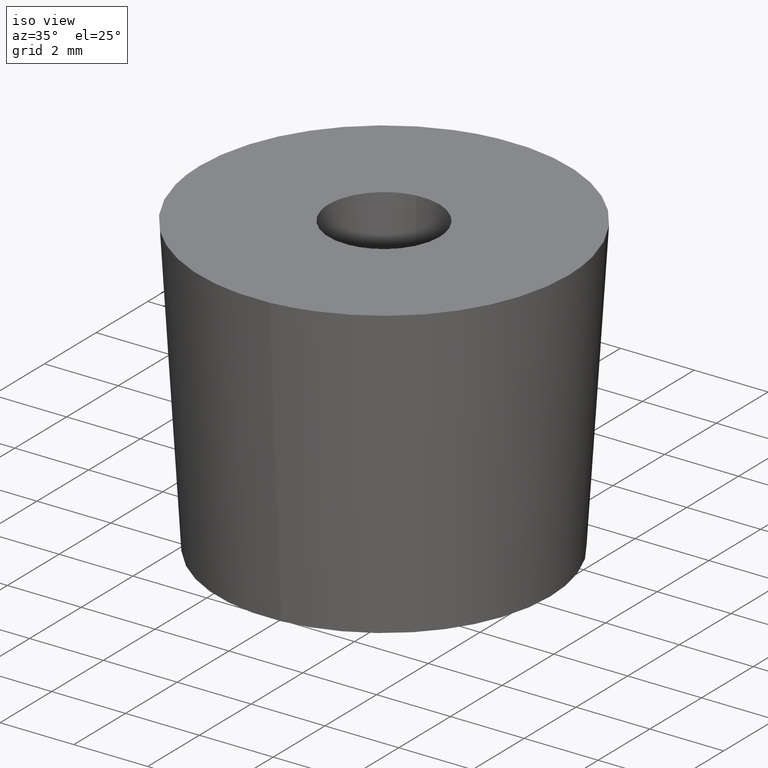
[diagram: clean part render]
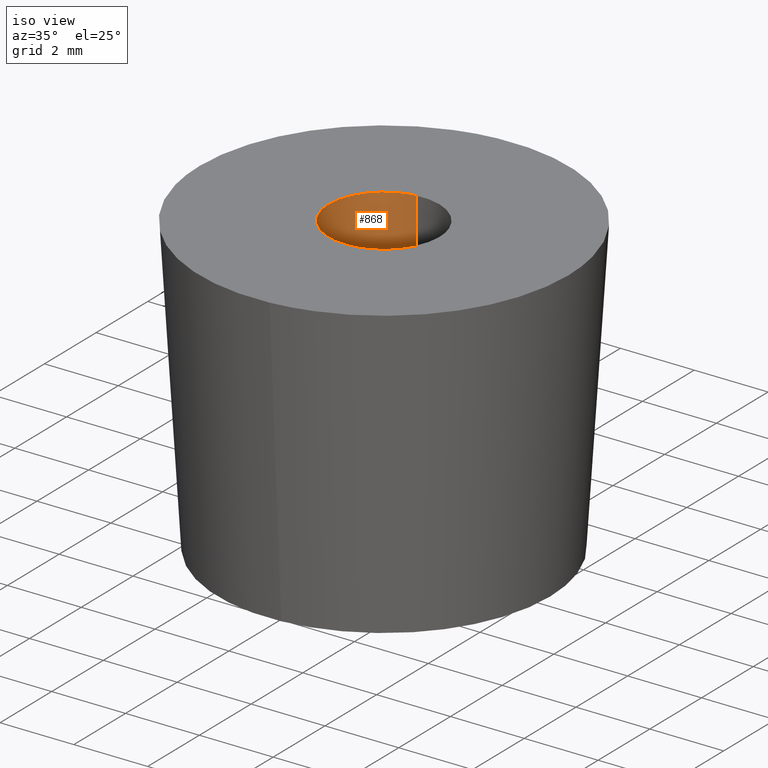
[diagram: same view with one face highlighted and labeled with its STEP entity id]
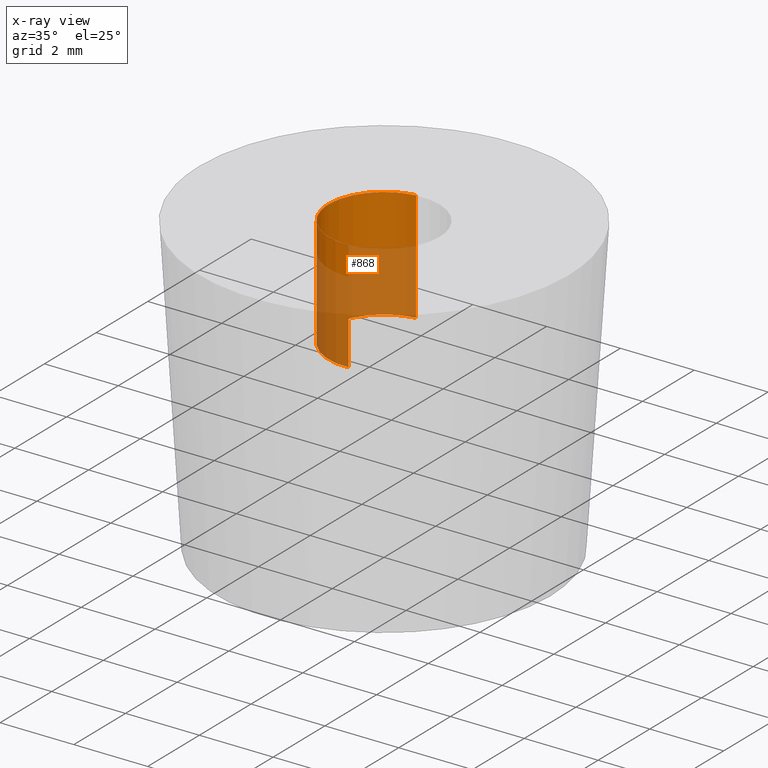
[diagram: x-ray of the same camera — body ghosted, the highlighted face saturated]
A machine part, iso view. The second image highlights one B-rep face of the part: STEP entity #868.
The next image is the same camera in x-ray: the body ghosted, the highlighted face saturated — about 56% of this face is hidden behind the body in this view.
In plain terms, the highlighted face is a freeform B-spline surface patch.
Its self-contained STEP definition (entity closure, byte-faithful):
#701=CARTESIAN_POINT('',(-0.177049095385547,1.489514557773100,8.000000000000014));
#702=VERTEX_POINT('',#701);
#720=CARTESIAN_POINT('',(-0.177049122601509,1.489514554538154,5.0));
#721=VERTEX_POINT('',#720);
#722=CARTESIAN_POINT('',(-0.177049095385547,1.489514557773100,8.000000000000014));
#723=CARTESIAN_POINT('',(-0.177049122601509,1.489514554538154,5.0));
#724=QUASI_UNIFORM_CURVE('',1,(#722,#723),.UNSPECIFIED.,.F.,.U.);
#725=EDGE_CURVE('',#702,#721,#724,.T.);
#744=CARTESIAN_POINT('',(0.091570935345200,-1.497202312246571,5.0));
#745=VERTEX_POINT('',#744);
#759=CARTESIAN_POINT('',(0.091570912522021,-1.497202313642439,7.999999999999989));
#760=VERTEX_POINT('',#759);
#761=CARTESIAN_POINT('',(0.091570912522021,-1.497202313642439,7.999999999999989));
#762=CARTESIAN_POINT('',(0.091570935345200,-1.497202312246571,5.0));
#763=QUASI_UNIFORM_CURVE('',1,(#761,#762),.UNSPECIFIED.,.F.,.U.);
#764=EDGE_CURVE('',#760,#745,#763,.T.);
#782=CARTESIAN_POINT('',(0.112202681040130,-1.495940420623945,8.074999999999998));
#783=CARTESIAN_POINT('',(0.101917265286339,-1.496569503600784,8.074999999999998));
#784=CARTESIAN_POINT('',(-1.405629388330515,-1.588775006935085,8.075000000000001));
#785=CARTESIAN_POINT('',(-1.497202197632800,-0.091572809302285,8.074999999999999));
#786=CARTESIAN_POINT('',(-1.583679295098791,1.322315236259252,8.075000000000001));
#787=CARTESIAN_POINT('',(-0.166519347114734,1.490766177972826,8.075000000000001));
#788=CARTESIAN_POINT('',(-0.156043946740954,1.492011338097695,8.074999999999999));
#789=CARTESIAN_POINT('',(0.112202681040130,-1.495940420623945,4.923124999999998));
#790=CARTESIAN_POINT('',(0.101917265286339,-1.496569503600784,4.923124999999998));
#791=CARTESIAN_POINT('',(-1.405629388330515,-1.588775006935085,4.923124999999998));
#792=CARTESIAN_POINT('',(-1.497202197632800,-0.091572809302285,4.923124999999999));
#793=CARTESIAN_POINT('',(-1.583679295098791,1.322315236259252,4.923124999999998));
#794=CARTESIAN_POINT('',(-0.166519347114734,1.490766177972826,4.923125000000000));
#795=CARTESIAN_POINT('',(-0.156043946740954,1.492011338097695,4.923125000000000));
#803=(BOUNDED_SURFACE()B_SPLINE_SURFACE(2,1,((#782,#789),(#783,#790),(#784,#791),(#785,#792),(#786,#793),(#787,#794),(#788,#795)),.UNSPECIFIED.,.F.,.F.,.U.)B_SPLINE_SURFACE_WITH_KNOTS((3,1,2,1,3),(2,2),(0.0,0.024353559358504,2.509634933597074,4.895505052866100,4.919863414297432),(0.0,3.151875000000001),.UNSPECIFIED.)GEOMETRIC_REPRESENTATION_ITEM()RATIONAL_B_SPLINE_SURFACE(((1.005740188989476,1.005740188989476),(1.002870094494738,1.002870094494738),(0.707106781186548,0.707106781186548),(1.0,1.0),(0.718822509939086,0.718822509939086),(0.980146808385619,0.980146808385619),(0.982787815976111,0.982787815976111)))REPRESENTATION_ITEM('')SURFACE());
#804=CARTESIAN_POINT('',(-1.500000000000000,0.0,8.0));
#805=VERTEX_POINT('',#804);
#806=CARTESIAN_POINT('',(-1.500000000000000,0.0,8.0));
#807=CARTESIAN_POINT('',(-1.500000000000000,1.332263821500285,8.0));
#808=CARTESIAN_POINT('',(-0.177049095385547,1.489514557773101,8.000000000000014));
#816=(BOUNDED_CURVE()B_SPLINE_CURVE(2,(#806,#807,#808),.UNSPECIFIED.,.F.,.U.)B_SPLINE_CURVE_WITH_KNOTS((3,3),(0.0,0.229562729553938),.UNSPECIFIED.)CURVE()GEOMETRIC_REPRESENTATION_ITEM()RATIONAL_B_SPLINE_CURVE((1.0,0.731050532885381,0.956027256034033))REPRESENTATION_ITEM(''));
#817=EDGE_CURVE('',#805,#702,#816,.T.);
#818=ORIENTED_EDGE('',*,*,#817,.F.);
#819=CARTESIAN_POINT('',(0.091570912522021,-1.497202313642440,7.999999999999989));
#820=CARTESIAN_POINT('',(0.045828193898650,-1.500000000000000,8.0));
#821=CARTESIAN_POINT('',(0.0,-1.500000000000000,8.0));
#822=CARTESIAN_POINT('',(-1.500000000000000,-1.500000000000000,8.0));
#823=CARTESIAN_POINT('',(-1.500000000000000,0.0,8.0));
#831=(BOUNDED_CURVE()B_SPLINE_CURVE(2,(#819,#820,#821,#822,#823),.UNSPECIFIED.,.F.,.U.)B_SPLINE_CURVE_WITH_KNOTS((3,2,3),(0.739333180838628,0.750000000000000,1.0),.UNSPECIFIED.)CURVE()GEOMETRIC_REPRESENTATION_ITEM()RATIONAL_B_SPLINE_CURVE((0.976072510167902,0.987503044005299,1.0,0.707106781186548,1.0))REPRESENTATION_ITEM(''));
#832=EDGE_CURVE('',#760,#805,#831,.T.);
#833=ORIENTED_EDGE('',*,*,#832,.F.);
#834=ORIENTED_EDGE('',*,*,#764,.T.);
#835=CARTESIAN_POINT('',(-1.500000000000000,0.0,5.0));
#836=VERTEX_POINT('',#835);
#837=CARTESIAN_POINT('',(0.091570935345200,-1.497202312246571,5.0));
#838=CARTESIAN_POINT('',(0.045828205342234,-1.500000000000000,5.000000000000001));
#839=CARTESIAN_POINT('',(0.0,-1.500000000000000,5.0));
#840=CARTESIAN_POINT('',(-1.500000000000000,-1.500000000000000,5.000000000000001));
#841=CARTESIAN_POINT('',(-1.500000000000000,0.0,5.0));
#849=(BOUNDED_CURVE()B_SPLINE_CURVE(2,(#837,#838,#839,#840,#841),.UNSPECIFIED.,.F.,.U.)B_SPLINE_CURVE_WITH_KNOTS((3,2,3),(0.739333178208343,0.750000000000000,1.0),.UNSPECIFIED.)CURVE()GEOMETRIC_REPRESENTATION_ITEM()RATIONAL_B_SPLINE_CURVE((0.976072504530692,0.987503040923729,1.0,0.707106781186548,1.0))REPRESENTATION_ITEM(''));
#850=EDGE_CURVE('',#745,#836,#849,.T.);
#851=ORIENTED_EDGE('',*,*,#850,.T.);
#852=CARTESIAN_POINT('',(-1.500000000000000,0.0,5.0));
#853=CARTESIAN_POINT('',(-1.500000000000000,1.332263796986205,5.0));
#854=CARTESIAN_POINT('',(-0.177049122601509,1.489514554538154,5.0));
#862=(BOUNDED_CURVE()B_SPLINE_CURVE(2,(#852,#853,#854),.UNSPECIFIED.,.F.,.U.)B_SPLINE_CURVE_WITH_KNOTS((3,3),(0.0,0.229562726465960),.UNSPECIFIED.)CURVE()GEOMETRIC_REPRESENTATION_ITEM()RATIONAL_B_SPLINE_CURVE((1.0,0.731050536503171,0.956027249981456))REPRESENTATION_ITEM(''));
#863=EDGE_CURVE('',#836,#721,#862,.T.);
#864=ORIENTED_EDGE('',*,*,#863,.T.);
#865=ORIENTED_EDGE('',*,*,#725,.F.);
#866=EDGE_LOOP('',(#818,#833,#834,#851,#864,#865));
#867=FACE_OUTER_BOUND('',#866,.T.);
#868=ADVANCED_FACE('',(#867),#803,.F.);